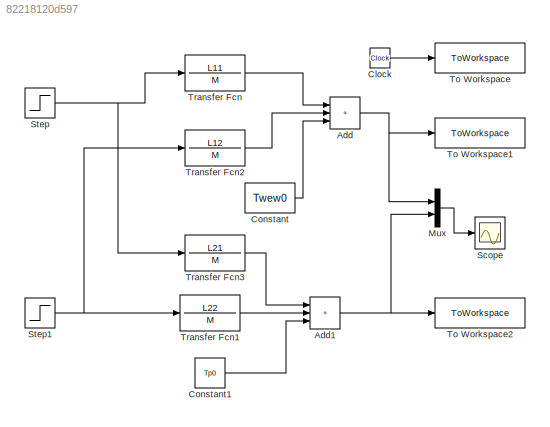
MODEL slx_82218120d597
KIND model
CONFIG AbsTol = auto
CONFIG EnableMultiTasking = off
CONFIG FixedStep = auto
CONFIG MaxStep = auto
CONFIG MinStep = auto
CONFIG RelTol = 1e-3
CONFIG SampleTimeConstraint = Unconstrained
CONFIG SolverName = VariableStepAuto
CONFIG StartTime = 0.0
CONFIG StopTime = czas_symulacji
BLOCK [Sum] Add
  IconShape = rectangular
  Inputs = +++
BLOCK [Sum] Add1
  IconShape = rectangular
  Inputs = +++
BLOCK [Clock] Clock
BLOCK [Constant] Constant
  Value = Twew0
BLOCK [Constant] Constant1
  Value = Tp0
BLOCK [Mux] Mux
  DisplayOption = bar
  Inputs = 2
BLOCK [Scope] Scope
  Floating = off
  NumInputPorts = 1
  ScopeSpecificationString = Simulink.scopes.TimeScopeBlockCfg('CurrentConfiguration', extmgr.ConfigurationSet(extmgr.Configuration('Core','General UI',true),extmgr.Configuration('Core','Source UI',true),extmgr.Configuration('Sources','WiredSimulink',true),extmgr.Configuration('Visuals','Time Domain',true,'SerializedDisplays',{struct('MinYLimReal','8.25012','MaxYLimReal','25.7489','YLabelReal','','MinYLimMag','8.25012','MaxYL...<+1370ch>
BLOCK [Step] Step
  After = dqg
  SampleTime = 0
  Time = t0
BLOCK [Step] Step1
  After = dTzew
  SampleTime = 0
  Time = t0
BLOCK [ToWorkspace] To Workspace
  FixptAsFi = on
  MaxDataPoints = inf
  SampleTime = -1
  SaveFormat = Timeseries
  VariableName = t
BLOCK [ToWorkspace] To Workspace1
  FixptAsFi = on
  MaxDataPoints = inf
  SampleTime = -1
  VariableName = Twew
BLOCK [ToWorkspace] To Workspace2
  FixptAsFi = on
  MaxDataPoints = inf
  SampleTime = -1
  VariableName = Tp
BLOCK [TransferFcn] Transfer Fcn
  Denominator = M
  Numerator = L11
BLOCK [TransferFcn] Transfer Fcn1
  Denominator = M
  Numerator = L22
BLOCK [TransferFcn] Transfer Fcn2
  Denominator = M
  Numerator = L12
BLOCK [TransferFcn] Transfer Fcn3
  Denominator = M
  Numerator = L21
NET Add1:1 -> Mux:2, To Workspace2:1
NET Add:1 -> Mux:1, To Workspace1:1
LINE Clock:1 -> To Workspace:1
LINE Constant1:1 -> Add1:3
LINE Constant:1 -> Add:3
LINE Mux:1 -> Scope:1
NET Step1:1 -> Transfer Fcn1:1, Transfer Fcn2:1
NET Step:1 -> Transfer Fcn3:1, Transfer Fcn:1
LINE Transfer Fcn1:1 -> Add1:2
LINE Transfer Fcn2:1 -> Add:2
LINE Transfer Fcn3:1 -> Add1:1
LINE Transfer Fcn:1 -> Add:1
note: NET lines group one-source signal fan-out (src -> all destinations, sorted); 1:1 wires keep LINE
